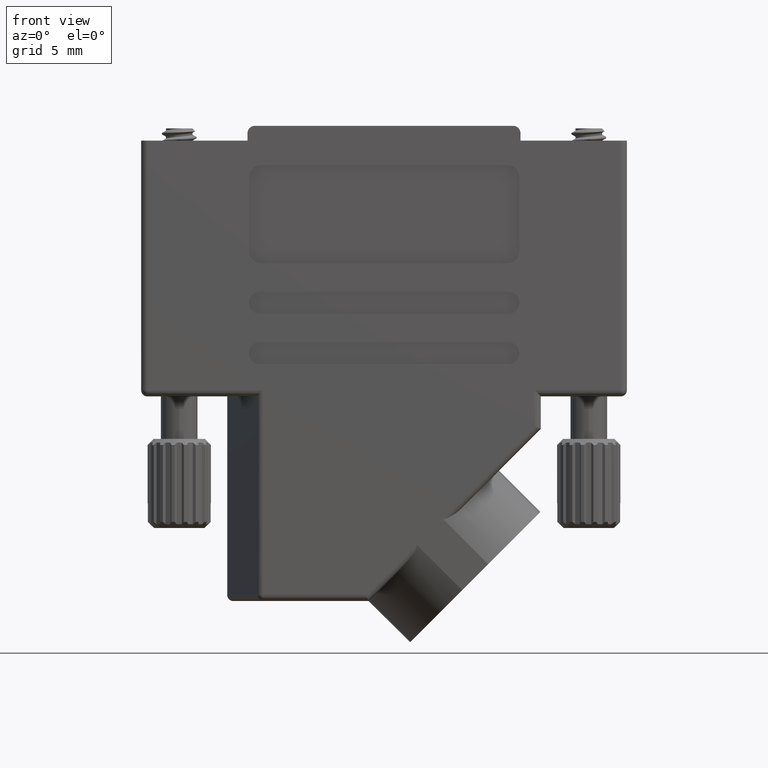
[diagram: clean part render]
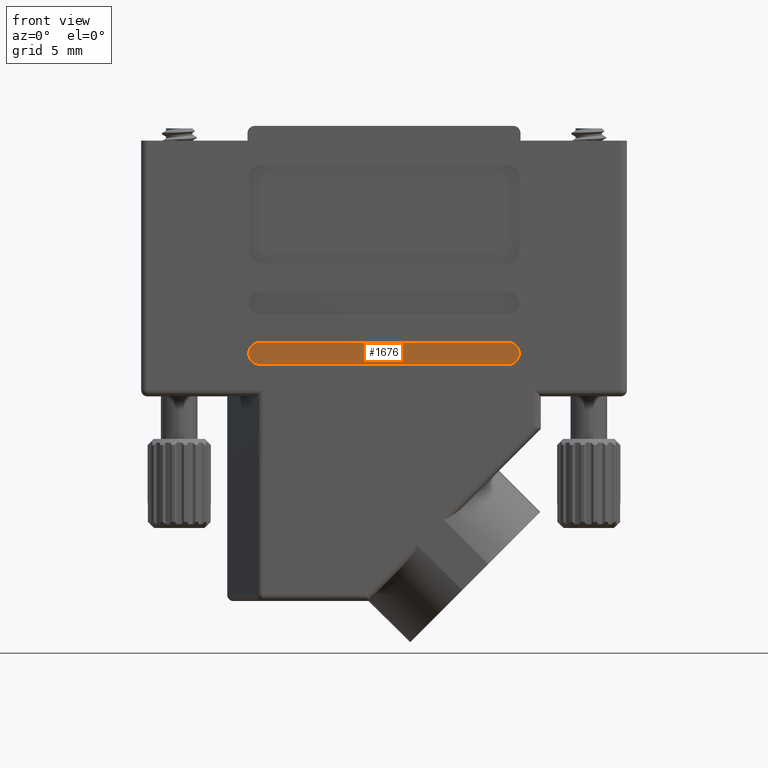
[diagram: same view with one face highlighted and labeled with its STEP entity id]
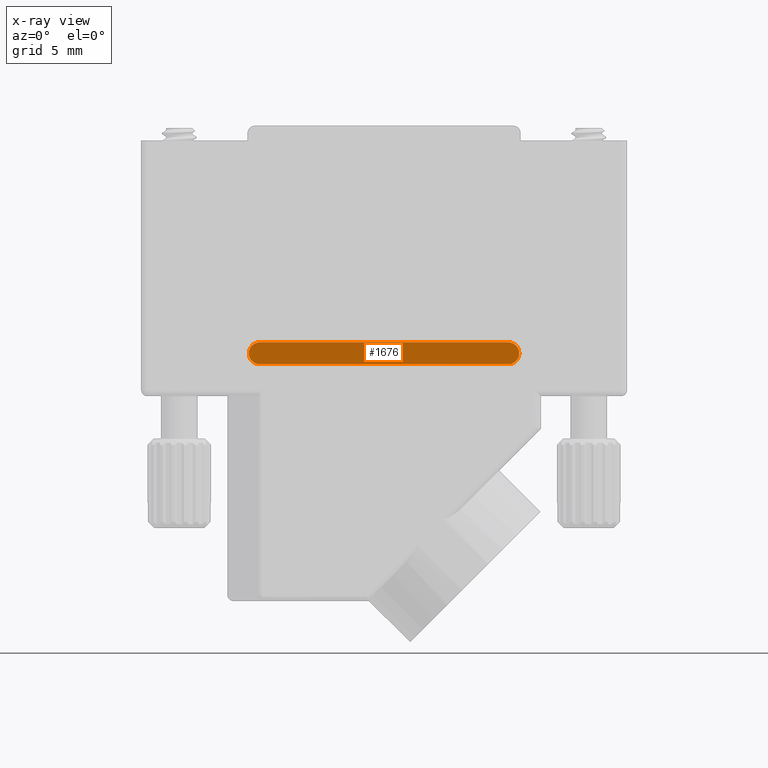
[diagram: x-ray of the same camera — body ghosted, the highlighted face saturated]
A machine part, front view. The second image highlights one B-rep face of the part: STEP entity #1676.
The next image is the same camera in x-ray: the body ghosted, the highlighted face saturated — about 0% of this face is hidden behind the body in this view.
In plain terms, the highlighted planar face has unit normal (0, -1, 0).
Its self-contained STEP definition (entity closure, byte-faithful):
#147 = ORIENTED_EDGE ( 'NONE', *, *, #19659, .T. ) ;
#529 = DIRECTION ( 'NONE',  ( 0.000000000000000000, -1.000000000000000000, 0.000000000000000000 ) ) ;
#751 = DIRECTION ( 'NONE',  ( 0.000000000000000000, -1.000000000000000000, 0.000000000000000000 ) ) ;
#1157 = CIRCLE ( 'NONE', #13034, 0.9000000000000014655 ) ;
#1676 = ADVANCED_FACE ( 'NONE', ( #12360 ), #4349, .T. ) ;
#1714 = CARTESIAN_POINT ( 'NONE',  ( -10.09999999999999787, -7.049999999999999822, -18.19999999999999929 ) ) ;
#2282 = ORIENTED_EDGE ( 'NONE', *, *, #19247, .T. ) ;
#2774 = CARTESIAN_POINT ( 'NONE',  ( 10.09999999999999787, -7.049999999999999822, -17.29999999999999716 ) ) ;
#2827 = VERTEX_POINT ( 'NONE', #13705 ) ;
#4178 = DIRECTION ( 'NONE',  ( 0.000000000000000000, -1.000000000000000000, 0.000000000000000000 ) ) ;
#4349 = PLANE ( 'NONE',  #16521 ) ;
#4499 = CARTESIAN_POINT ( 'NONE',  ( 10.09999999999999787, -7.049999999999999822, -18.19999999999999574 ) ) ;
#4615 = CARTESIAN_POINT ( 'NONE',  ( -10.09999999999999787, -7.049999999999999822, -17.29999999999999361 ) ) ;
#4670 = VERTEX_POINT ( 'NONE', #16933 ) ;
#5829 = ORIENTED_EDGE ( 'NONE', *, *, #7832, .T. ) ;
#6234 = VECTOR ( 'NONE', #9866, 1000.000000000000000 ) ;
#7022 = ORIENTED_EDGE ( 'NONE', *, *, #20215, .T. ) ;
#7521 = CARTESIAN_POINT ( 'NONE',  ( 10.09999999999999787, -7.049999999999999822, -17.29999999999999716 ) ) ;
#7832 = EDGE_CURVE ( 'NONE', #2827, #17250, #20127, .T. ) ;
#9685 = LINE ( 'NONE', #17905, #17386 ) ;
#9866 = DIRECTION ( 'NONE',  ( 1.000000000000000000, -0.000000000000000000, 1.717547996016640980E-16 ) ) ;
#9968 = LINE ( 'NONE', #18178, #6234 ) ;
#11027 = DIRECTION ( 'NONE',  ( 0.000000000000000000, 0.000000000000000000, -1.000000000000000000 ) ) ;
#12360 = FACE_OUTER_BOUND ( 'NONE', #16177, .T. ) ;
#12952 = DIRECTION ( 'NONE',  ( 0.000000000000000000, 0.000000000000000000, -1.000000000000000000 ) ) ;
#13034 = AXIS2_PLACEMENT_3D ( 'NONE', #2774, #751, #11027 ) ;
#13705 = CARTESIAN_POINT ( 'NONE',  ( -10.09999999999999787, -7.049999999999999822, -16.39999999999999147 ) ) ;
#14719 = AXIS2_PLACEMENT_3D ( 'NONE', #4615, #4178, #12952 ) ;
#15488 = VERTEX_POINT ( 'NONE', #4499 ) ;
#16177 = EDGE_LOOP ( 'NONE', ( #147, #2282, #5829, #7022 ) ) ;
#16521 = AXIS2_PLACEMENT_3D ( 'NONE', #7521, #529, #19568 ) ;
#16933 = CARTESIAN_POINT ( 'NONE',  ( 10.09999999999999787, -7.049999999999999822, -16.39999999999999503 ) ) ;
#17250 = VERTEX_POINT ( 'NONE', #1714 ) ;
#17386 = VECTOR ( 'NONE', #21409, 1000.000000000000000 ) ;
#17905 = CARTESIAN_POINT ( 'NONE',  ( 10.09999999999999787, -7.049999999999999822, -16.39999999999999503 ) ) ;
#18178 = CARTESIAN_POINT ( 'NONE',  ( 10.09999999999999787, -7.049999999999999822, -18.19999999999999574 ) ) ;
#19247 = EDGE_CURVE ( 'NONE', #4670, #2827, #9685, .T. ) ;
#19568 = DIRECTION ( 'NONE',  ( 0.000000000000000000, -0.000000000000000000, -1.000000000000000000 ) ) ;
#19659 = EDGE_CURVE ( 'NONE', #15488, #4670, #1157, .T. ) ;
#20127 = CIRCLE ( 'NONE', #14719, 0.9000000000000014655 ) ;
#20215 = EDGE_CURVE ( 'NONE', #17250, #15488, #9968, .T. ) ;
#21409 = DIRECTION ( 'NONE',  ( -1.000000000000000000, 0.000000000000000000, 0.000000000000000000 ) ) ;